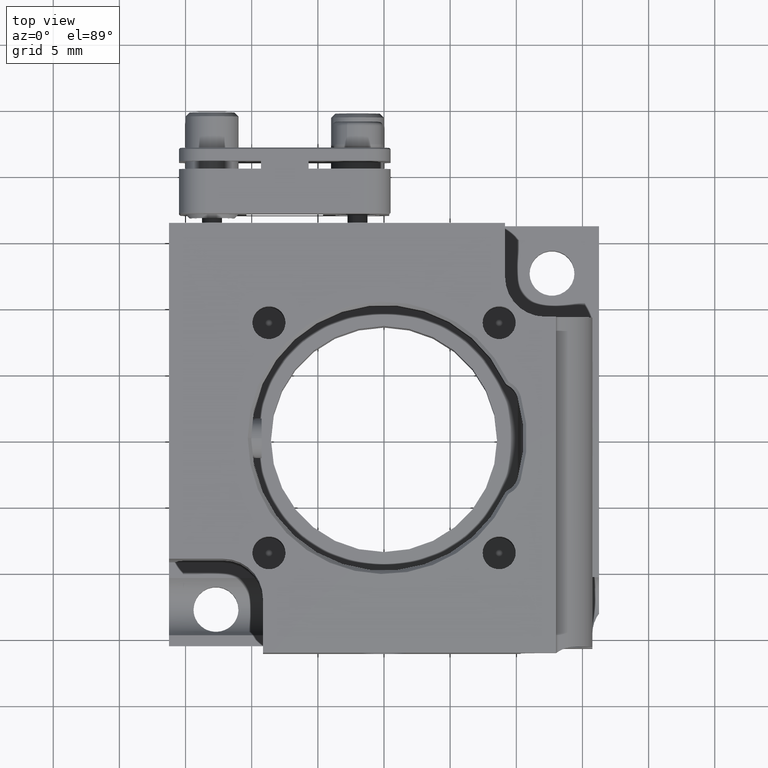
[diagram: clean part render]
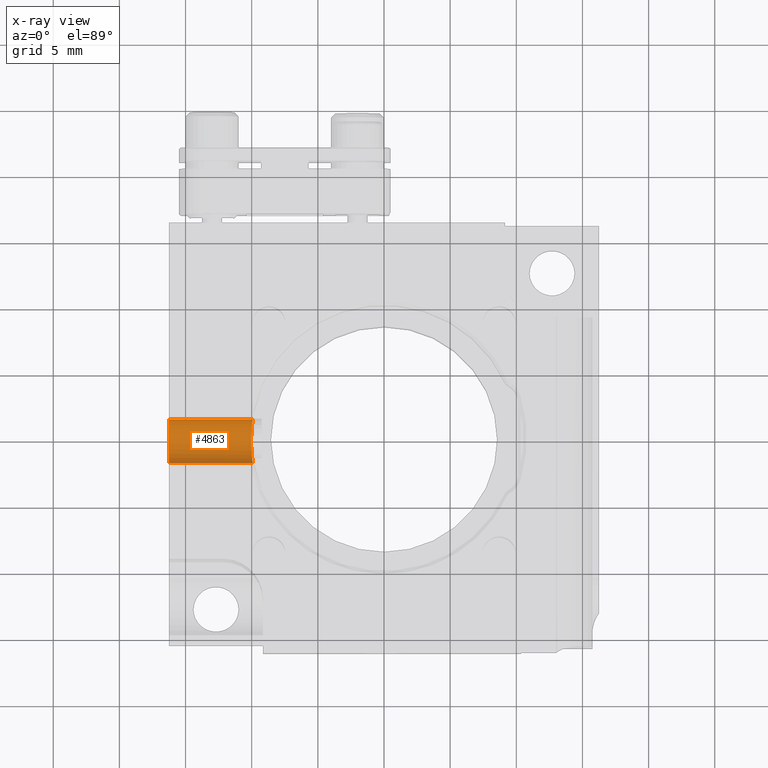
[diagram: x-ray — body ghosted, one internal face saturated and labeled with its STEP entity id]
A machine part, top view, then the same camera in x-ray: the body is ghosted and one INTERNAL B-rep face — a face not visible from any outside direction — is saturated and labeled: STEP entity #4863.
In plain terms, the highlighted cylindrical surface (edge-blend (fillet) strip) has radius 1.65 mm, axis along (-1, -0, 0).
Its self-contained STEP definition (entity closure, byte-faithful):
#235 = CARTESIAN_POINT ( 'NONE',  ( -9.915442488108432428, 1.639194885604791541, -6.467274723744072418 ) ) ;
#289 = AXIS2_PLACEMENT_3D ( 'NONE', #1816, #6175, #4319 ) ;
#349 = CARTESIAN_POINT ( 'NONE',  ( -9.973065377088223826, 1.243563913025404588, -7.339888065063754574 ) ) ;
#372 = CARTESIAN_POINT ( 'NONE',  ( -9.913626985114982304, -1.650000000000017675, -6.249999999999999112 ) ) ;
#628 = LINE ( 'NONE', #6742, #9556 ) ;
#664 = CARTESIAN_POINT ( 'NONE',  ( -9.999834553929661141, -1.014505233874777534, -7.568883187554203751 ) ) ;
#716 = ORIENTED_EDGE ( 'NONE', *, *, #5660, .F. ) ;
#940 = CARTESIAN_POINT ( 'NONE',  ( -9.913626985114985857, 1.649999999999978595, -6.249999999999998224 ) ) ;
#1042 = CARTESIAN_POINT ( 'NONE',  ( -10.03643791006367003, 0.5314642497673599530, -7.815810446681024537 ) ) ;
#1108 = VERTEX_POINT ( 'NONE', #940 ) ;
#1429 = CARTESIAN_POINT ( 'NONE',  ( -16.24999999999999645, -2.997602166487920766E-14, -6.249999999999998224 ) ) ;
#1515 = CARTESIAN_POINT ( 'NONE',  ( -9.964169974097295324, -1.312048120072121904, -7.256303172912047295 ) ) ;
#1558 = B_SPLINE_CURVE_WITH_KNOTS ( 'NONE', 3,
 ( #2311, #4066, #8487, #2365, #7580, #11079, #6720, #1515, #4979, #664, #4129, #3602, #7219, #2803, #10597, #8920, #1042, #6365, #5476, #349, #2748, #8064, #3816, #8121, #3765, #235, #9721, #3708 ),
 .UNSPECIFIED., .F., .F.,
 ( 4, 2, 2, 2, 2, 2, 2, 2, 2, 2, 2, 2, 2, 4 ),
 ( 8.940560153363745023E-19, 0.0003229622433670320818, 0.0006459244867340632962, 0.0009688867301010946733, 0.001291848973468125725, 0.001937773460202188479, 0.002583697946936250583, 0.002906660190303281960, 0.003229622433670312903, 0.003875546920404373489, 0.004198509163771405733, 0.004521471407138437544, 0.004844433650505468487, 0.005167395893872499431 ),
 .UNSPECIFIED. ) ;
#1816 = CARTESIAN_POINT ( 'NONE',  ( -16.24999999999999645, -2.997602166487920766E-14, -6.249999999999998224 ) ) ;
#2311 = CARTESIAN_POINT ( 'NONE',  ( -9.913626985114982304, -1.650000000000017675, -6.249999999999999112 ) ) ;
#2322 = VERTEX_POINT ( 'NONE', #372 ) ;
#2365 = CARTESIAN_POINT ( 'NONE',  ( -9.922288740057137346, -1.597228736426111739, -6.677724375610623042 ) ) ;
#2557 = FACE_OUTER_BOUND ( 'NONE', #9610, .T. ) ;
#2748 = CARTESIAN_POINT ( 'NONE',  ( -9.964217221776983990, 1.311682035571163141, -7.256740739319730515 ) ) ;
#2800 = ORIENTED_EDGE ( 'NONE', *, *, #5456, .T. ) ;
#2803 = CARTESIAN_POINT ( 'NONE',  ( -10.05000665783478908, 0.1072014660858068569, -7.900040552269243399 ) ) ;
#3074 = DIRECTION ( 'NONE',  ( -2.102695122396130409E-15, -1.000000000000000000, 0.000000000000000000 ) ) ;
#3257 = VERTEX_POINT ( 'NONE', #10518 ) ;
#3602 = CARTESIAN_POINT ( 'NONE',  ( -10.04260783663379719, -0.4336871436061761620, -7.856422914909658495 ) ) ;
#3708 = CARTESIAN_POINT ( 'NONE',  ( -9.913626985114985857, 1.649999999999978595, -6.249999999999998224 ) ) ;
#3765 = CARTESIAN_POINT ( 'NONE',  ( -9.922345615969682342, 1.596877291849962521, -6.679128294738181815 ) ) ;
#3816 = CARTESIAN_POINT ( 'NONE',  ( -9.940087528770472858, 1.482872849510466162, -6.981616140766293555 ) ) ;
#4066 = CARTESIAN_POINT ( 'NONE',  ( -9.913626985114984080, -1.650000000000018119, -6.359218782448038176 ) ) ;
#4129 = CARTESIAN_POINT ( 'NONE',  ( -10.01758618177076343, -0.8306767059110772289, -7.691754254487521258 ) ) ;
#4319 = DIRECTION ( 'NONE',  ( -2.102695122396131987E-15, -1.000000000000000000, 0.000000000000000000 ) ) ;
#4347 = ORIENTED_EDGE ( 'NONE', *, *, #7663, .T. ) ;
#4494 = VECTOR ( 'NONE', #10325, 1000.000000000000000 ) ;
#4863 = ADVANCED_FACE ( 'NONE', ( #2557 ), #10458, .F. ) ;
#4979 = CARTESIAN_POINT ( 'NONE',  ( -9.973195314160822278, -1.242468598992273465, -7.341015679773359004 ) ) ;
#5456 = EDGE_CURVE ( 'NONE', #3257, #7092, #8642, .T. ) ;
#5476 = CARTESIAN_POINT ( 'NONE',  ( -10.00000733154867660, 1.013059847586654127, -7.570393329958081452 ) ) ;
#5660 = EDGE_CURVE ( 'NONE', #2322, #7092, #628, .T. ) ;
#5881 = DIRECTION ( 'NONE',  ( -1.000000000000000000, -1.609823385706476984E-15, 8.011868568650903338E-32 ) ) ;
#5983 = CARTESIAN_POINT ( 'NONE',  ( -16.24999999999999289, 1.649999999999968381, -6.249999999999998224 ) ) ;
#6175 = DIRECTION ( 'NONE',  ( -1.000000000000000000, -1.609823385706476984E-15, 8.011868568650903338E-32 ) ) ;
#6365 = CARTESIAN_POINT ( 'NONE',  ( -10.01755032828267922, 0.8314722519121220401, -7.691534012489857020 ) ) ;
#6720 = CARTESIAN_POINT ( 'NONE',  ( -9.947667390694871159, -1.431805512698146154, -7.077072741060206340 ) ) ;
#6742 = CARTESIAN_POINT ( 'NONE',  ( -16.25000000000000000, -1.650000000000028111, -6.249999999999998224 ) ) ;
#7092 = VERTEX_POINT ( 'NONE', #7425 ) ;
#7219 = CARTESIAN_POINT ( 'NONE',  ( -10.04998662652025132, -0.2162700029642689314, -7.899918543344988997 ) ) ;
#7425 = CARTESIAN_POINT ( 'NONE',  ( -16.25000000000000000, -1.650000000000029443, -6.249999999999998224 ) ) ;
#7580 = CARTESIAN_POINT ( 'NONE',  ( -9.927424499393060486, -1.565407723911129256, -6.782626435607538085 ) ) ;
#7663 = EDGE_CURVE ( 'NONE', #2322, #1108, #1558, .T. ) ;
#7756 = LINE ( 'NONE', #5983, #4494 ) ;
#8064 = CARTESIAN_POINT ( 'NONE',  ( -9.947763712847743633, 1.431129525426272364, -7.078193793806328848 ) ) ;
#8121 = CARTESIAN_POINT ( 'NONE',  ( -9.927391094421352591, 1.565617458333006251, -6.781992518187947461 ) ) ;
#8487 = CARTESIAN_POINT ( 'NONE',  ( -9.915430916159300168, -1.639263012576806178, -6.466574591202350675 ) ) ;
#8642 = CIRCLE ( 'NONE', #10299, 1.649999999999999467 ) ;
#8920 = CARTESIAN_POINT ( 'NONE',  ( -10.04141910503710733, 0.4285152925873894070, -7.847038437385817744 ) ) ;
#9556 = VECTOR ( 'NONE', #5881, 1000.000000000000000 ) ;
#9610 = EDGE_LOOP ( 'NONE', ( #4347, #10754, #2800, #716 ) ) ;
#9721 = CARTESIAN_POINT ( 'NONE',  ( -9.913626985114985857, 1.649999999999978817, -6.357782707505795550 ) ) ;
#10134 = EDGE_CURVE ( 'NONE', #1108, #3257, #7756, .T. ) ;
#10299 = AXIS2_PLACEMENT_3D ( 'NONE', #1429, #10927, #3074 ) ;
#10325 = DIRECTION ( 'NONE',  ( -1.000000000000000000, -1.609823385706476984E-15, 8.011868568650903338E-32 ) ) ;
#10458 = CYLINDRICAL_SURFACE ( 'NONE', #289, 1.649999999999998357 ) ;
#10518 = CARTESIAN_POINT ( 'NONE',  ( -16.25000000000000000, 1.649999999999969713, -6.249999999999998224 ) ) ;
#10597 = CARTESIAN_POINT ( 'NONE',  ( -10.04822091997589162, 0.2167471853204944454, -7.889261353209012562 ) ) ;
#10754 = ORIENTED_EDGE ( 'NONE', *, *, #10134, .T. ) ;
#10927 = DIRECTION ( 'NONE',  ( -1.000000000000000000, -1.609823385706476984E-15, 8.011868568650903338E-32 ) ) ;
#11079 = CARTESIAN_POINT ( 'NONE',  ( -9.940142304339453005, -1.482507842377708274, -6.982367912512013497 ) ) ;